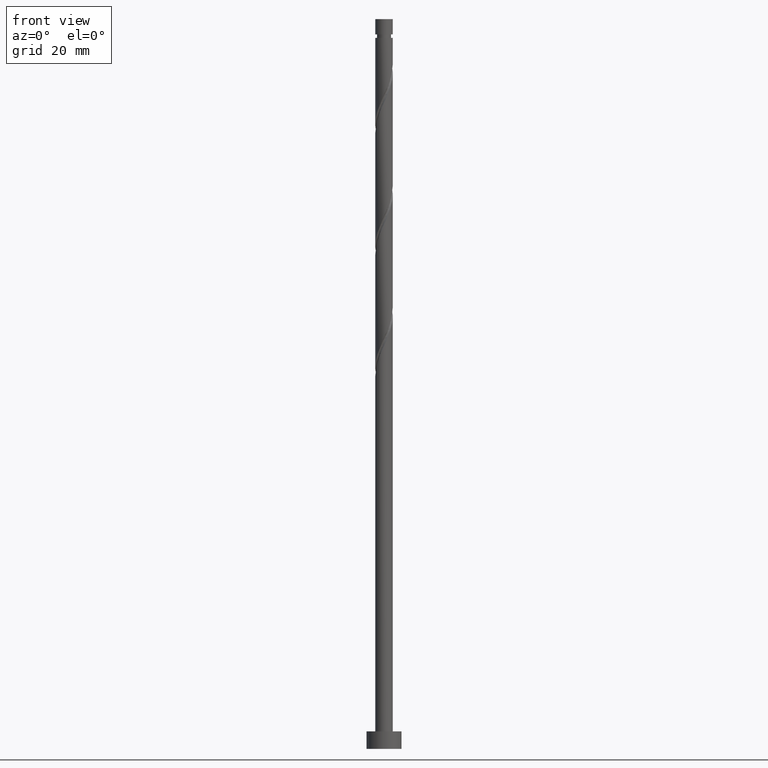
[diagram: clean part render]
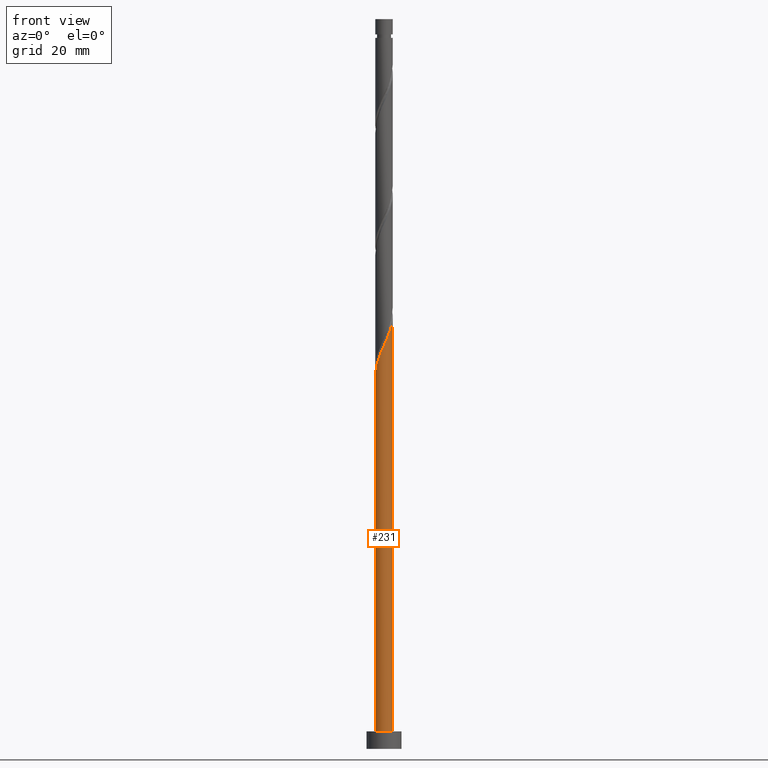
[diagram: same view with one face highlighted and labeled with its STEP entity id]
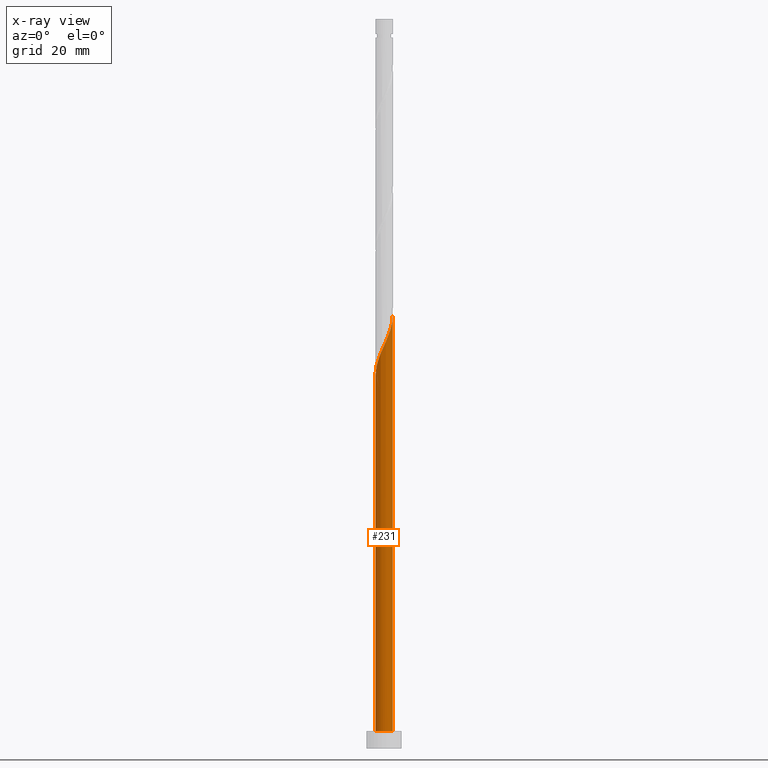
[diagram: x-ray of the same camera — body ghosted, the highlighted face saturated]
A machine part, front view. The second image highlights one B-rep face of the part: STEP entity #231.
The next image is the same camera in x-ray: the body ghosted, the highlighted face saturated — about 0% of this face is hidden behind the body in this view.
In plain terms, the highlighted cylindrical surface (edge-blend (fillet) strip) has radius 1.5 mm, axis along (-0, -0, -1).
Its self-contained STEP definition (entity closure, byte-faithful):
#15 = VERTEX_POINT ( 'NONE', #197 ) ;
#29 = CARTESIAN_POINT ( 'NONE',  ( 1.500000000000002665, 1.266917185180876536E-15, 74.24252902966667023 ) ) ;
#35 = CARTESIAN_POINT ( 'NONE',  ( -0.1703681960235536863, -1.490293487130534444, 68.65733147113692780 ) ) ;
#69 = VECTOR ( 'NONE', #1432, 1000.000000000000000 ) ;
#109 = EDGE_CURVE ( 'NONE', #855, #15, #1321, .T. ) ;
#165 = CARTESIAN_POINT ( 'NONE',  ( 1.490293487130534444, -0.1703681960235537418, 73.86566480447028482 ) ) ;
#180 = CARTESIAN_POINT ( 'NONE',  ( -0.8387040983525508864, -1.266103512756640459, 67.09483147113694201 ) ) ;
#197 = CARTESIAN_POINT ( 'NONE',  ( -1.500000000000000222, 0.000000000000000000, 3.000000000000000000 ) ) ;
#231 = ADVANCED_FACE ( 'NONE', ( #353 ), #1121, .T. ) ;
#258 = DIRECTION ( 'NONE',  ( -0.000000000000000000, -0.000000000000000000, -1.000000000000000000 ) ) ;
#281 = LINE ( 'NONE', #757, #327 ) ;
#304 = ORIENTED_EDGE ( 'NONE', *, *, #1372, .T. ) ;
#327 = VECTOR ( 'NONE', #750, 1000.000000000000000 ) ;
#353 = FACE_OUTER_BOUND ( 'NONE', #1055, .T. ) ;
#398 = CARTESIAN_POINT ( 'NONE',  ( -1.305812670777222406, -0.7381417674387935612, 65.53233147113694201 ) ) ;
#405 = CARTESIAN_POINT ( 'NONE',  ( 0.5313213584090549224, -1.422722841493179624, 70.21983147113694201 ) ) ;
#423 = VERTEX_POINT ( 'NONE', #896 ) ;
#538 = CARTESIAN_POINT ( 'NONE',  ( -1.500000000000002665, -1.476820624145755631E-15, 63.82586236300001303 ) ) ;
#579 = AXIS2_PLACEMENT_3D ( 'NONE', #873, #1562, #753 ) ;
#623 = CARTESIAN_POINT ( 'NONE',  ( -1.422722841493179624, -0.5313213584090550334, 65.01149813780361342 ) ) ;
#624 = CARTESIAN_POINT ( 'NONE',  ( 0.000000000000000000, 0.000000000000000000, 125.0000000000000000 ) ) ;
#651 =( BOUNDED_CURVE ( )  B_SPLINE_CURVE ( 2, ( #538, #1361, #1385, #623, #398, #1242, #1270, #180, #1036, #909, #35, #1005, #788, #405, #780, #1127, #1502, #754, #1393, #882, #165, #1368, #29 ),
 .UNSPECIFIED., .F., .T. ) 
 B_SPLINE_CURVE_WITH_KNOTS ( ( 3, 2, 2, 2, 2, 2, 2, 2, 2, 2, 2, 3 ),
 ( 0.05453220231385527000, 0.06250000000000000000, 0.07499999999999995559, 0.08750000000000002220, 0.09999999999999997780, 0.1125000000000000444, 0.1250000000000000000, 0.1374999999999999556, 0.1500000000000000222, 0.1624999999999999778, 0.1750000000000000444, 0.1795322023138551659 ),
 .UNSPECIFIED. ) 
 CURVE ( )  GEOMETRIC_REPRESENTATION_ITEM ( )  RATIONAL_B_SPLINE_CURVE ( ( 0.9039174447099451726, 0.9019565955404744706, 0.9090909090909228274, 0.8978984914501387804, 0.9090909090909228274, 0.8978984914501387804, 0.9090909090909228274, 0.8978984914501387804, 0.9090909090909228274, 0.8978984914501387804, 0.9090909090909228274, 0.8978984914501387804, 0.9090909090909228274, 0.8978984914501387804, 0.9090909090909228274, 0.8978984914501387804, 0.9090909090909228274, 0.8978984914501387804, 0.9090909090909228274, 0.8978984914501387804, 0.9090909090909228274, 0.9050328050005871372, 0.9039174447099449505 ) ) 
 REPRESENTATION_ITEM ( '' )  );
#690 = CARTESIAN_POINT ( 'NONE',  ( -1.500000000000000222, 0.000000000000000000, 125.0000000000000000 ) ) ;
#750 = DIRECTION ( 'NONE',  ( -0.000000000000000000, -0.000000000000000000, -1.000000000000000000 ) ) ;
#753 = DIRECTION ( 'NONE',  ( 1.000000000000000000, 0.000000000000000000, 0.000000000000000000 ) ) ;
#754 = CARTESIAN_POINT ( 'NONE',  ( 1.266103512756640459, -0.8387040983525511084, 72.30316480447025640 ) ) ;
#757 = CARTESIAN_POINT ( 'NONE',  ( 1.500000000000000222, 1.836970198721029934E-16, 125.0000000000000000 ) ) ;
#758 = AXIS2_PLACEMENT_3D ( 'NONE', #624, #258, #991 ) ;
#780 = CARTESIAN_POINT ( 'NONE',  ( 0.7381417674387932282, -1.305812670777222406, 70.74066480447027061 ) ) ;
#788 = CARTESIAN_POINT ( 'NONE',  ( 0.2984962311319862560, -1.470000000000002860, 69.69899813780361342 ) ) ;
#855 = VERTEX_POINT ( 'NONE', #1104 ) ;
#873 = CARTESIAN_POINT ( 'NONE',  ( 0.000000000000000000, 0.000000000000000000, 3.000000000000000000 ) ) ;
#882 = CARTESIAN_POINT ( 'NONE',  ( 1.463309815754242571, -0.4064074959020249067, 73.34483147113695622 ) ) ;
#890 = CIRCLE ( 'NONE', #579, 1.500000000000000222 ) ;
#896 = CARTESIAN_POINT ( 'NONE',  ( 1.500000000000000222, 1.836970198721029934E-16, 3.000000000000000000 ) ) ;
#909 = CARTESIAN_POINT ( 'NONE',  ( -0.4064074959020249067, -1.463309815754242571, 68.13649813780358500 ) ) ;
#985 = EDGE_CURVE ( 'NONE', #855, #1228, #651, .T. ) ;
#991 = DIRECTION ( 'NONE',  ( -1.000000000000000000, 0.000000000000000000, 0.000000000000000000 ) ) ;
#1005 = CARTESIAN_POINT ( 'NONE',  ( 0.06567110385491743696, -1.517277158506825430, 69.17816480447028482 ) ) ;
#1031 = ORIENTED_EDGE ( 'NONE', *, *, #1231, .F. ) ;
#1036 = CARTESIAN_POINT ( 'NONE',  ( -0.6225557971272880353, -1.364706664255441737, 67.61566480447027061 ) ) ;
#1055 = EDGE_LOOP ( 'NONE', ( #1031, #1381, #1441, #304 ) ) ;
#1104 = CARTESIAN_POINT ( 'NONE',  ( -1.500000000000002665, -1.476820624145755631E-15, 63.82586236300001303 ) ) ;
#1121 = CYLINDRICAL_SURFACE ( 'NONE', #758, 1.500000000000000222 ) ;
#1127 = CARTESIAN_POINT ( 'NONE',  ( 0.9449621764685315339, -1.188902500061264966, 71.26149813780362763 ) ) ;
#1228 = VERTEX_POINT ( 'NONE', #1364 ) ;
#1231 = EDGE_CURVE ( 'NONE', #1228, #423, #281, .T. ) ;
#1242 = CARTESIAN_POINT ( 'NONE',  ( -1.188902500061264966, -0.9449621764685317560, 66.05316480447028482 ) ) ;
#1270 = CARTESIAN_POINT ( 'NONE',  ( -1.013803299206907704, -1.105532844612586274, 66.57399813780359921 ) ) ;
#1321 = LINE ( 'NONE', #690, #69 ) ;
#1361 = CARTESIAN_POINT ( 'NONE',  ( -1.500000000000002442, -0.1507556722888831469, 64.16016693840785479 ) ) ;
#1364 = CARTESIAN_POINT ( 'NONE',  ( 1.500000000000002665, 1.266917185180876536E-15, 74.24252902966667023 ) ) ;
#1368 = CARTESIAN_POINT ( 'NONE',  ( 1.500000000000002665, -0.08546060616965055201, 74.05301794045938379 ) ) ;
#1372 = EDGE_CURVE ( 'NONE', #15, #423, #890, .T. ) ;
#1381 = ORIENTED_EDGE ( 'NONE', *, *, #985, .F. ) ;
#1385 = CARTESIAN_POINT ( 'NONE',  ( -1.470000000000002860, -0.2984962311319863670, 64.49066480447028482 ) ) ;
#1393 = CARTESIAN_POINT ( 'NONE',  ( 1.364706664255441737, -0.6225557971272880353, 72.82399813780359921 ) ) ;
#1432 = DIRECTION ( 'NONE',  ( -0.000000000000000000, -0.000000000000000000, -1.000000000000000000 ) ) ;
#1441 = ORIENTED_EDGE ( 'NONE', *, *, #109, .T. ) ;
#1502 = CARTESIAN_POINT ( 'NONE',  ( 1.105532844612586274, -1.013803299206907704, 71.78233147113692780 ) ) ;
#1562 = DIRECTION ( 'NONE',  ( 0.000000000000000000, 0.000000000000000000, 1.000000000000000000 ) ) ;